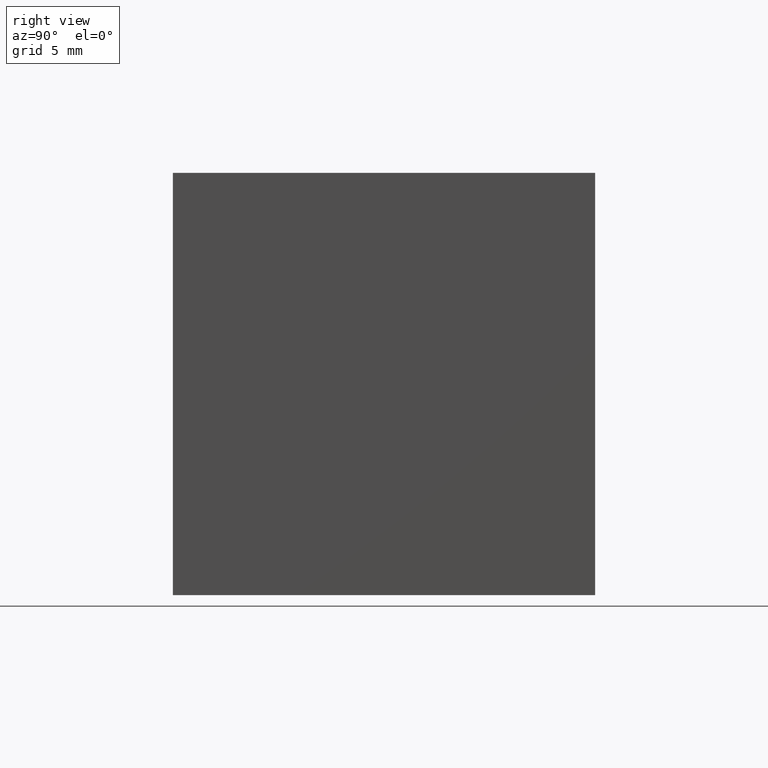
[diagram: clean part render]
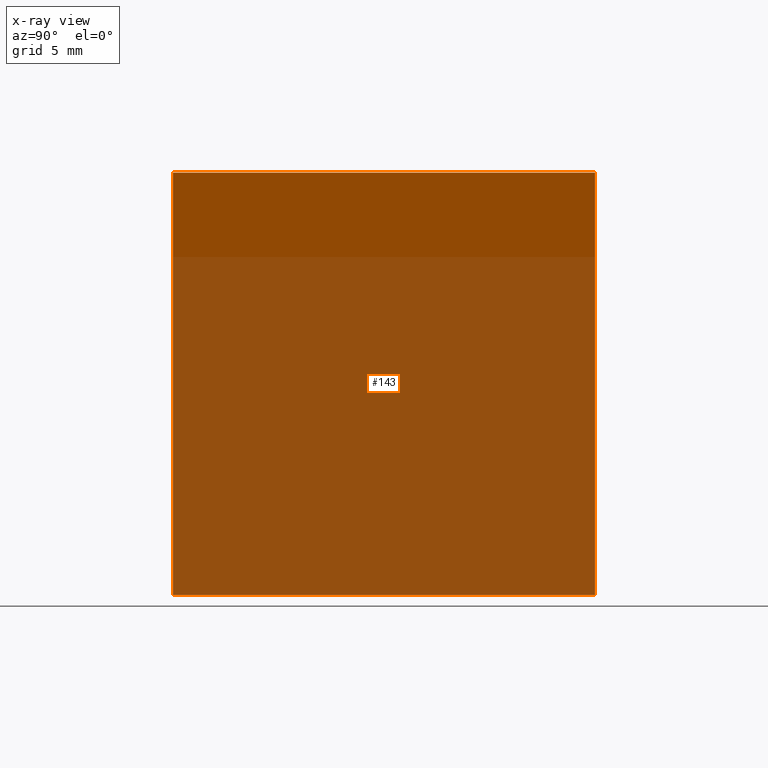
[diagram: x-ray — body ghosted, one internal face saturated and labeled with its STEP entity id]
A machine part, right view, then the same camera in x-ray: the body is ghosted and one INTERNAL B-rep face — a face not visible from any outside direction — is saturated and labeled: STEP entity #143.
In plain terms, the highlighted planar face has unit normal (0.7071, 0, -0.7071).
Its self-contained STEP definition (entity closure, byte-faithful):
#25 = LINE ( 'NONE', #137, #257 ) ;
#38 = CARTESIAN_POINT ( 'NONE',  ( -25.00000000000000000, 0.0000000000000000000, -25.00000000000000000 ) ) ;
#47 = DIRECTION ( 'NONE',  ( -0.0000000000000000000, -1.000000000000000000, -0.0000000000000000000 ) ) ;
#52 = CARTESIAN_POINT ( 'NONE',  ( -25.00000000000000000, 25.00000000000000000, -25.00000000000000000 ) ) ;
#55 = CARTESIAN_POINT ( 'NONE',  ( -25.00000000000000000, 25.00000000000000000, -25.00000000000000000 ) ) ;
#56 = VERTEX_POINT ( 'NONE', #243 ) ;
#61 = EDGE_CURVE ( 'NONE', #99, #188, #25, .T. ) ;
#74 = VECTOR ( 'NONE', #209, 1000.000000000000100 ) ;
#78 = ORIENTED_EDGE ( 'NONE', *, *, #298, .F. ) ;
#82 = LINE ( 'NONE', #55, #116 ) ;
#88 = VECTOR ( 'NONE', #229, 1000.000000000000100 ) ;
#91 = ORIENTED_EDGE ( 'NONE', *, *, #61, .F. ) ;
#99 = VERTEX_POINT ( 'NONE', #277 ) ;
#104 = LINE ( 'NONE', #38, #74 ) ;
#116 = VECTOR ( 'NONE', #47, 1000.000000000000000 ) ;
#120 = LINE ( 'NONE', #52, #88 ) ;
#126 = CARTESIAN_POINT ( 'NONE',  ( 0.0000000000000000000, 0.0000000000000000000, 0.0000000000000000000 ) ) ;
#137 = CARTESIAN_POINT ( 'NONE',  ( 0.0000000000000000000, 25.00000000000000000, 0.0000000000000000000 ) ) ;
#143 = ADVANCED_FACE ( 'NONE', ( #228 ), #231, .F. ) ;
#163 = ORIENTED_EDGE ( 'NONE', *, *, #205, .T. ) ;
#170 = VERTEX_POINT ( 'NONE', #197 ) ;
#188 = VERTEX_POINT ( 'NONE', #126 ) ;
#197 = CARTESIAN_POINT ( 'NONE',  ( -25.00000000000000000, 25.00000000000000000, -25.00000000000000000 ) ) ;
#198 = AXIS2_PLACEMENT_3D ( 'NONE', #276, #287, #216 ) ;
#205 = EDGE_CURVE ( 'NONE', #170, #56, #82, .T. ) ;
#208 = EDGE_LOOP ( 'NONE', ( #227, #91, #78, #163 ) ) ;
#209 = DIRECTION ( 'NONE',  ( 0.7071067811865474600, 0.0000000000000000000, 0.7071067811865474600 ) ) ;
#216 = DIRECTION ( 'NONE',  ( -0.7071067811865474600, 0.0000000000000000000, -0.7071067811865474600 ) ) ;
#225 = EDGE_CURVE ( 'NONE', #56, #188, #104, .T. ) ;
#227 = ORIENTED_EDGE ( 'NONE', *, *, #225, .T. ) ;
#228 = FACE_OUTER_BOUND ( 'NONE', #208, .T. ) ;
#229 = DIRECTION ( 'NONE',  ( 0.7071067811865474600, 0.0000000000000000000, 0.7071067811865474600 ) ) ;
#231 = PLANE ( 'NONE',  #198 ) ;
#243 = CARTESIAN_POINT ( 'NONE',  ( -25.00000000000000000, 0.0000000000000000000, -25.00000000000000000 ) ) ;
#257 = VECTOR ( 'NONE', #259, 1000.000000000000000 ) ;
#259 = DIRECTION ( 'NONE',  ( -0.0000000000000000000, -1.000000000000000000, -0.0000000000000000000 ) ) ;
#276 = CARTESIAN_POINT ( 'NONE',  ( -25.00000000000000000, 25.00000000000000000, -25.00000000000000000 ) ) ;
#277 = CARTESIAN_POINT ( 'NONE',  ( 0.0000000000000000000, 25.00000000000000000, 0.0000000000000000000 ) ) ;
#287 = DIRECTION ( 'NONE',  ( 0.7071067811865475700, 0.0000000000000000000, -0.7071067811865475700 ) ) ;
#298 = EDGE_CURVE ( 'NONE', #170, #99, #120, .T. ) ;